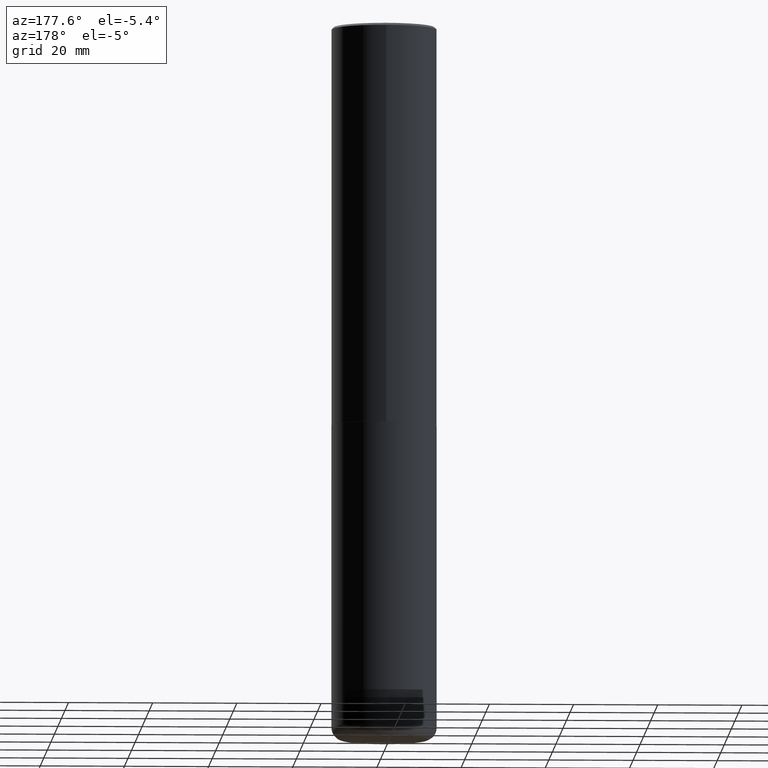
[diagram: clean part render]
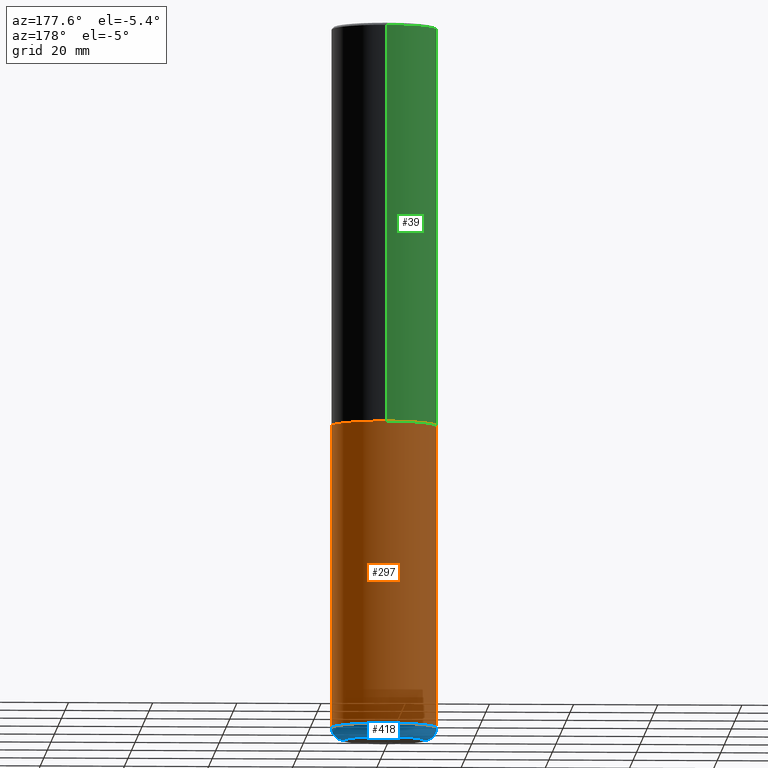
[diagram: same view with three faces highlighted in distinct colors, each labeled with its STEP entity id]
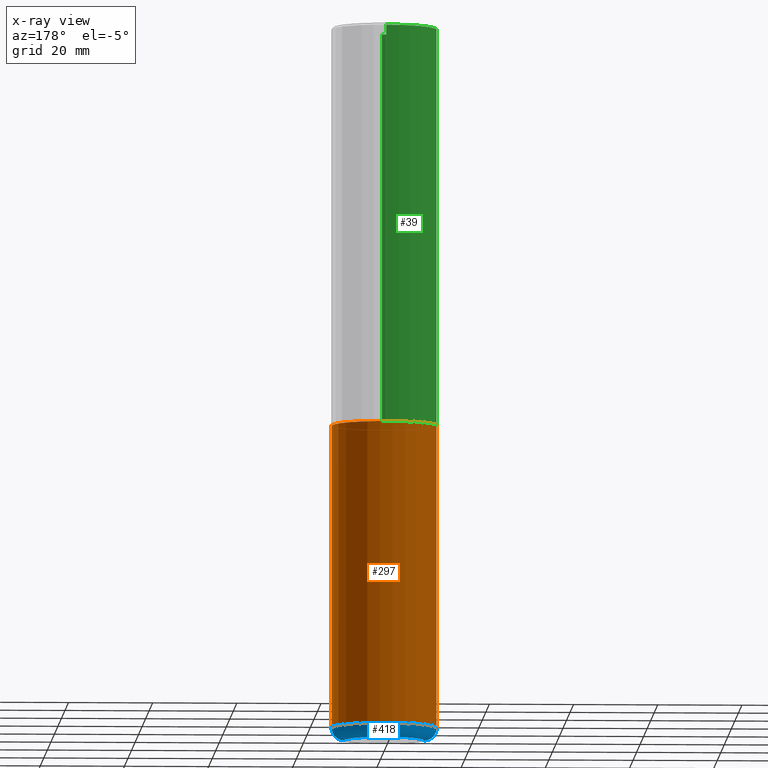
[diagram: x-ray of the same camera — body ghosted, the three highlighted faces saturated]
A machine part, auxiliary view with three faces highlighted in distinct colors.
The next image is the same camera in x-ray (body ghosted, the three faces saturated) — at least one of them is partly hidden behind the body in this view.
Their STEP definitions:

[orange] entity #297 — the highlighted cylindrical surface (partial cylindrical patch) has radius 12.5006 mm, axis along (-0, 0, 1).
#12 = VERTEX_POINT ( 'NONE', #20 ) ;
#20 = CARTESIAN_POINT ( 'NONE',  ( -0.4921499999999999764, -1.945885543258258157E-14, -6.574799999999999756 ) ) ;
#25 = CARTESIAN_POINT ( 'NONE',  ( -0.4921499999999999764, -1.451020435697325173E-14, -3.740100000000000424 ) ) ;
#41 = VERTEX_POINT ( 'NONE', #25 ) ;
#44 = CARTESIAN_POINT ( 'NONE',  ( 1.607846830690603466E-28, -2.295579150662591525E-14, -6.574799999999999756 ) ) ;
#59 = CARTESIAN_POINT ( 'NONE',  ( 0.4921499999999999764, -3.436665081823295777E-15, 2.399810400207969603E-29 ) ) ;
#70 = DIRECTION ( 'NONE',  ( -2.445468806185136597E-29, 3.491481338843145583E-15, 1.000000000000000000 ) ) ;
#79 = DIRECTION ( 'NONE',  ( -2.445468806185136597E-29, 3.491481338843145583E-15, 1.000000000000000000 ) ) ;
#82 = CARTESIAN_POINT ( 'NONE',  ( -0.4921499999999999764, 3.496936074043332897E-15, -2.420853904668951509E-29 ) ) ;
#87 = EDGE_CURVE ( 'NONE', #167, #369, #380, .T. ) ;
#89 = CIRCLE ( 'NONE', #354, 0.4921500000000000319 ) ;
#95 = DIRECTION ( 'NONE',  ( 1.000000000000000000, -6.982962677686265133E-15, 0.000000000000000000 ) ) ;
#101 = EDGE_LOOP ( 'NONE', ( #316, #207, #174, #279 ) ) ;
#113 = VECTOR ( 'NONE', #398, 39.37007874015748143 ) ;
#135 = DIRECTION ( 'NONE',  ( 1.000000000000000000, -6.982962677686265922E-15, 0.000000000000000000 ) ) ;
#141 = CARTESIAN_POINT ( 'NONE',  ( 0.000000000000000000, 0.000000000000000000, 0.000000000000000000 ) ) ;
#154 = CIRCLE ( 'NONE', #397, 0.4921499999999999764 ) ;
#167 = VERTEX_POINT ( 'NONE', #222 ) ;
#173 = LINE ( 'NONE', #82, #113 ) ;
#174 = ORIENTED_EDGE ( 'NONE', *, *, #238, .F. ) ;
#192 = DIRECTION ( 'NONE',  ( 1.000000000000000000, -6.982962677686265922E-15, 4.876176775795935793E-29 ) ) ;
#207 = ORIENTED_EDGE ( 'NONE', *, *, #306, .T. ) ;
#222 = CARTESIAN_POINT ( 'NONE',  ( 0.4921499999999999764, -2.639245658844920945E-14, -6.574799999999999756 ) ) ;
#238 = EDGE_CURVE ( 'NONE', #369, #41, #154, .T. ) ;
#262 = FACE_OUTER_BOUND ( 'NONE', #101, .T. ) ;
#279 = ORIENTED_EDGE ( 'NONE', *, *, #87, .F. ) ;
#293 = DIRECTION ( 'NONE',  ( -2.445468806185136877E-29, 3.491481338843145188E-15, 1.000000000000000000 ) ) ;
#297 = ADVANCED_FACE ( 'NONE', ( #262 ), #328, .T. ) ;
#303 = CARTESIAN_POINT ( 'NONE',  ( 9.146297882013029477E-29, -1.305848935540725085E-14, -3.740100000000000424 ) ) ;
#306 = EDGE_CURVE ( 'NONE', #12, #41, #173, .T. ) ;
#314 = AXIS2_PLACEMENT_3D ( 'NONE', #141, #70, #192 ) ;
#316 = ORIENTED_EDGE ( 'NONE', *, *, #371, .T. ) ;
#327 = VECTOR ( 'NONE', #293, 39.37007874015748143 ) ;
#328 = CYLINDRICAL_SURFACE ( 'NONE', #314, 0.4921499999999999764 ) ;
#338 = CARTESIAN_POINT ( 'NONE',  ( 0.4921499999999999764, -1.649515443723054663E-14, -3.740100000000000424 ) ) ;
#354 = AXIS2_PLACEMENT_3D ( 'NONE', #44, #79, #95 ) ;
#369 = VERTEX_POINT ( 'NONE', #338 ) ;
#371 = EDGE_CURVE ( 'NONE', #167, #12, #89, .T. ) ;
#380 = LINE ( 'NONE', #59, #327 ) ;
#397 = AXIS2_PLACEMENT_3D ( 'NONE', #303, #401, #135 ) ;
#398 = DIRECTION ( 'NONE',  ( -2.445468806185136877E-29, 3.491481338843145188E-15, 1.000000000000000000 ) ) ;
#401 = DIRECTION ( 'NONE',  ( -2.445468806185136597E-29, 3.491481338843145583E-15, 1.000000000000000000 ) ) ;

[blue] entity #418 — the highlighted toroidal blend (fillet) surface has major radius 9.5009 mm and minor (blend) radius 2.9997 mm.
#5 = ORIENTED_EDGE ( 'NONE', *, *, #337, .T. ) ;
#12 = VERTEX_POINT ( 'NONE', #20 ) ;
#20 = CARTESIAN_POINT ( 'NONE',  ( -0.4921499999999999764, -1.945885543258258157E-14, -6.574799999999999756 ) ) ;
#40 = VERTEX_POINT ( 'NONE', #251 ) ;
#44 = CARTESIAN_POINT ( 'NONE',  ( 1.607846830690603466E-28, -2.295579150662591525E-14, -6.574799999999999756 ) ) ;
#64 = EDGE_LOOP ( 'NONE', ( #5, #362, #77, #302 ) ) ;
#68 = CIRCLE ( 'NONE', #161, 0.3740499999999999381 ) ;
#77 = ORIENTED_EDGE ( 'NONE', *, *, #371, .F. ) ;
#78 = DIRECTION ( 'NONE',  ( 1.000000000000000000, -6.982962677686266711E-15, 4.883557194083112340E-29 ) ) ;
#79 = DIRECTION ( 'NONE',  ( -2.445468806185136597E-29, 3.491481338843145583E-15, 1.000000000000000000 ) ) ;
#89 = CIRCLE ( 'NONE', #354, 0.4921500000000000319 ) ;
#95 = DIRECTION ( 'NONE',  ( 1.000000000000000000, -6.982962677686265133E-15, 0.000000000000000000 ) ) ;
#127 = CARTESIAN_POINT ( 'NONE',  ( 0.3740499999999999381, -2.556776869621446119E-14, -6.574799999999999756 ) ) ;
#130 = CARTESIAN_POINT ( 'NONE',  ( 0.3740499999999999381, -2.598011264233183690E-14, -6.692899999999999849 ) ) ;
#134 = DIRECTION ( 'NONE',  ( -2.445468806185136597E-29, 3.491481338843145583E-15, 1.000000000000000000 ) ) ;
#142 = EDGE_CURVE ( 'NONE', #282, #167, #340, .T. ) ;
#161 = AXIS2_PLACEMENT_3D ( 'NONE', #197, #277, #368 ) ;
#167 = VERTEX_POINT ( 'NONE', #222 ) ;
#178 = AXIS2_PLACEMENT_3D ( 'NONE', #365, #134, #78 ) ;
#183 = AXIS2_PLACEMENT_3D ( 'NONE', #127, #294, #260 ) ;
#189 = CARTESIAN_POINT ( 'NONE',  ( -0.3740499999999999381, -2.029800640351526055E-14, -6.574799999999999756 ) ) ;
#191 = DIRECTION ( 'NONE',  ( -1.000000000000000000, 7.105427357601001859E-15, 0.000000000000000000 ) ) ;
#197 = CARTESIAN_POINT ( 'NONE',  ( 1.636727817291649966E-28, -2.336813545274328780E-14, -6.692899999999999849 ) ) ;
#221 = TOROIDAL_SURFACE ( 'NONE', #178, 0.3740499999999999381, 0.1181000000000000660 ) ;
#222 = CARTESIAN_POINT ( 'NONE',  ( 0.4921499999999999764, -2.639245658844920945E-14, -6.574799999999999756 ) ) ;
#251 = CARTESIAN_POINT ( 'NONE',  ( -0.3740499999999999381, -2.008460289110760576E-14, -6.692899999999999849 ) ) ;
#260 = DIRECTION ( 'NONE',  ( 1.000000000000000000, -6.982962677686270655E-15, 0.000000000000000000 ) ) ;
#265 = FACE_OUTER_BOUND ( 'NONE', #64, .T. ) ;
#277 = DIRECTION ( 'NONE',  ( -2.445468806185136597E-29, 3.491481338843145583E-15, 1.000000000000000000 ) ) ;
#282 = VERTEX_POINT ( 'NONE', #130 ) ;
#294 = DIRECTION ( 'NONE',  ( -6.982962677686266711E-15, -1.000000000000000000, 3.491481338843145583E-15 ) ) ;
#302 = ORIENTED_EDGE ( 'NONE', *, *, #142, .F. ) ;
#337 = EDGE_CURVE ( 'NONE', #282, #40, #68, .T. ) ;
#340 = CIRCLE ( 'NONE', #183, 0.1181000000000000383 ) ;
#354 = AXIS2_PLACEMENT_3D ( 'NONE', #44, #79, #95 ) ;
#357 = DIRECTION ( 'NONE',  ( 7.105427357601001859E-15, 1.000000000000000000, -3.491481338843145583E-15 ) ) ;
#362 = ORIENTED_EDGE ( 'NONE', *, *, #411, .T. ) ;
#365 = CARTESIAN_POINT ( 'NONE',  ( 1.607846830690603466E-28, -2.295579150662591525E-14, -6.574799999999999756 ) ) ;
#368 = DIRECTION ( 'NONE',  ( 1.000000000000000000, -6.982962677686265133E-15, 0.000000000000000000 ) ) ;
#371 = EDGE_CURVE ( 'NONE', #167, #12, #89, .T. ) ;
#385 = CIRCLE ( 'NONE', #392, 0.1181000000000000383 ) ;
#392 = AXIS2_PLACEMENT_3D ( 'NONE', #189, #357, #191 ) ;
#411 = EDGE_CURVE ( 'NONE', #40, #12, #385, .T. ) ;
#418 = ADVANCED_FACE ( 'NONE', ( #265 ), #221, .T. ) ;

[green] entity #39 — the highlighted cylindrical surface (partial cylindrical patch) has radius 12.5006 mm, axis along (-0, 0, 1).
#9 = VERTEX_POINT ( 'NONE', #45 ) ;
#27 = DIRECTION ( 'NONE',  ( -2.445976594451651952E-29, 3.490754157143982552E-15, 1.000000000000000000 ) ) ;
#37 = CARTESIAN_POINT ( 'NONE',  ( 4.891953188903329688E-31, -6.981508314288001687E-17, -0.02000000000000010797 ) ) ;
#39 = ADVANCED_FACE ( 'NONE', ( #382 ), #152, .T. ) ;
#45 = CARTESIAN_POINT ( 'NONE',  ( 3.436665081823295777E-15, 0.4921499999999998098, -0.02000000000000182188 ) ) ;
#57 = CARTESIAN_POINT ( 'NONE',  ( 3.496936074043333291E-15, 0.4921500000000000874, -1.717974658438411319E-15 ) ) ;
#69 = VERTEX_POINT ( 'NONE', #182 ) ;
#99 = VERTEX_POINT ( 'NONE', #255 ) ;
#112 = EDGE_LOOP ( 'NONE', ( #162, #400, #239, #304 ) ) ;
#122 = DIRECTION ( 'NONE',  ( -6.982962677686265922E-15, -1.000000000000000000, 3.490754157143982552E-15 ) ) ;
#131 = VECTOR ( 'NONE', #240, 39.37007874015748143 ) ;
#152 = CYLINDRICAL_SURFACE ( 'NONE', #177, 0.4921500000000000874 ) ;
#156 = EDGE_CURVE ( 'NONE', #69, #9, #253, .T. ) ;
#162 = ORIENTED_EDGE ( 'NONE', *, *, #156, .F. ) ;
#165 = CARTESIAN_POINT ( 'NONE',  ( -3.436665081823296565E-15, -0.4921500000000000874, 1.717974658438411319E-15 ) ) ;
#177 = AXIS2_PLACEMENT_3D ( 'NONE', #351, #295, #122 ) ;
#182 = CARTESIAN_POINT ( 'NONE',  ( 3.496936074043380229E-15, 0.4921499999999873198, -3.739100000000002311 ) ) ;
#200 = EDGE_CURVE ( 'NONE', #69, #99, #414, .T. ) ;
#203 = AXIS2_PLACEMENT_3D ( 'NONE', #37, #307, #356 ) ;
#219 = DIRECTION ( 'NONE',  ( -6.982962677686265922E-15, -1.000000000000000000, 3.330506545156063496E-15 ) ) ;
#230 = VERTEX_POINT ( 'NONE', #355 ) ;
#239 = ORIENTED_EDGE ( 'NONE', *, *, #288, .T. ) ;
#240 = DIRECTION ( 'NONE',  ( -2.445976594451651672E-29, 3.490754157143982552E-15, 1.000000000000000000 ) ) ;
#253 = LINE ( 'NONE', #57, #405 ) ;
#255 = CARTESIAN_POINT ( 'NONE',  ( -3.436665081823207030E-15, -0.4921500000000134101, -3.739099999999998758 ) ) ;
#288 = EDGE_CURVE ( 'NONE', #99, #230, #358, .T. ) ;
#295 = DIRECTION ( 'NONE',  ( -2.445976594451651952E-29, 3.490754157143982552E-15, 1.000000000000000000 ) ) ;
#304 = ORIENTED_EDGE ( 'NONE', *, *, #383, .F. ) ;
#307 = DIRECTION ( 'NONE',  ( -2.445976594451651952E-29, 3.490754157143982552E-15, 1.000000000000000000 ) ) ;
#313 = AXIS2_PLACEMENT_3D ( 'NONE', #349, #27, #219 ) ;
#318 = DIRECTION ( 'NONE',  ( -2.445976594451651672E-29, 3.490754157143982552E-15, 1.000000000000000000 ) ) ;
#341 = CIRCLE ( 'NONE', #203, 0.4921499999999999209 ) ;
#349 = CARTESIAN_POINT ( 'NONE',  ( 9.145751084314172604E-29, -1.305227886897706845E-14, -3.739100000000000534 ) ) ;
#351 = CARTESIAN_POINT ( 'NONE',  ( 0.000000000000000000, 0.000000000000000000, 0.000000000000000000 ) ) ;
#355 = CARTESIAN_POINT ( 'NONE',  ( -3.376394089603257868E-15, -0.4921499999999999764, -0.01999999999999839059 ) ) ;
#356 = DIRECTION ( 'NONE',  ( -6.982962677686265922E-15, -1.000000000000000000, 3.486624039460257331E-15 ) ) ;
#358 = LINE ( 'NONE', #165, #131 ) ;
#382 = FACE_OUTER_BOUND ( 'NONE', #112, .T. ) ;
#383 = EDGE_CURVE ( 'NONE', #9, #230, #341, .T. ) ;
#400 = ORIENTED_EDGE ( 'NONE', *, *, #200, .T. ) ;
#405 = VECTOR ( 'NONE', #318, 39.37007874015748143 ) ;
#414 = CIRCLE ( 'NONE', #313, 0.4921500000000003650 ) ;